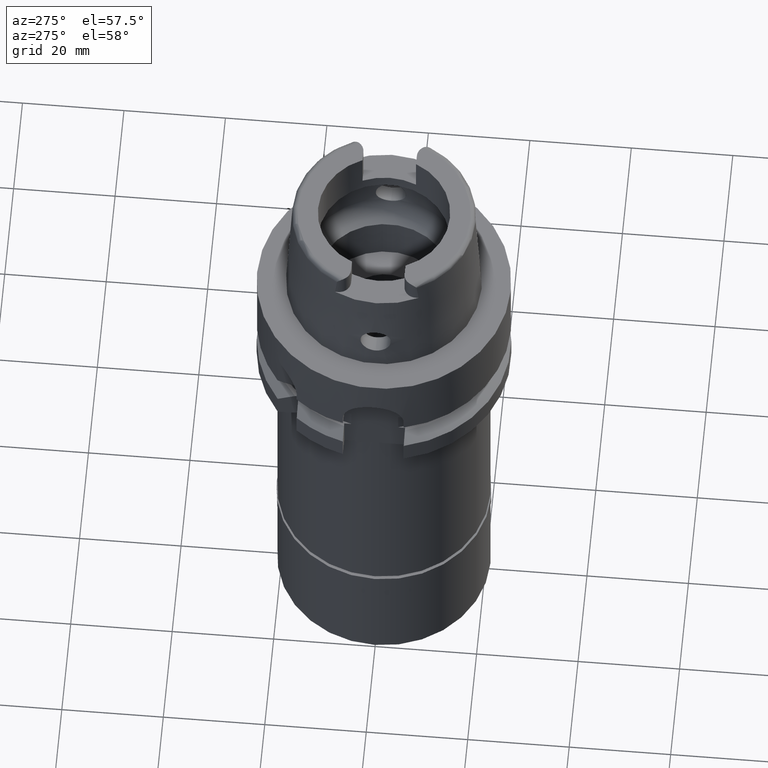
[diagram: clean part render]
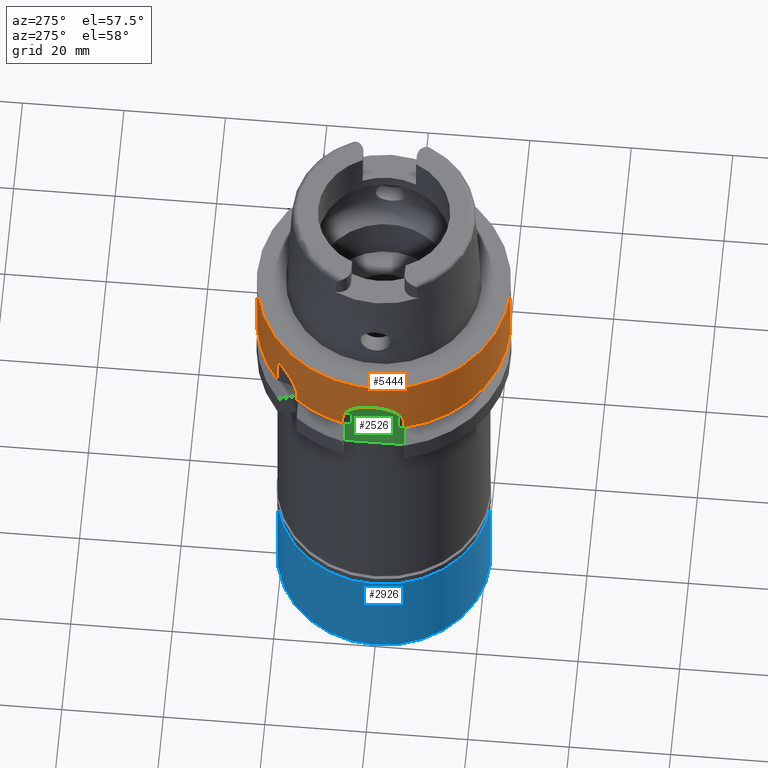
[diagram: same view with three faces highlighted in distinct colors, each labeled with its STEP entity id]
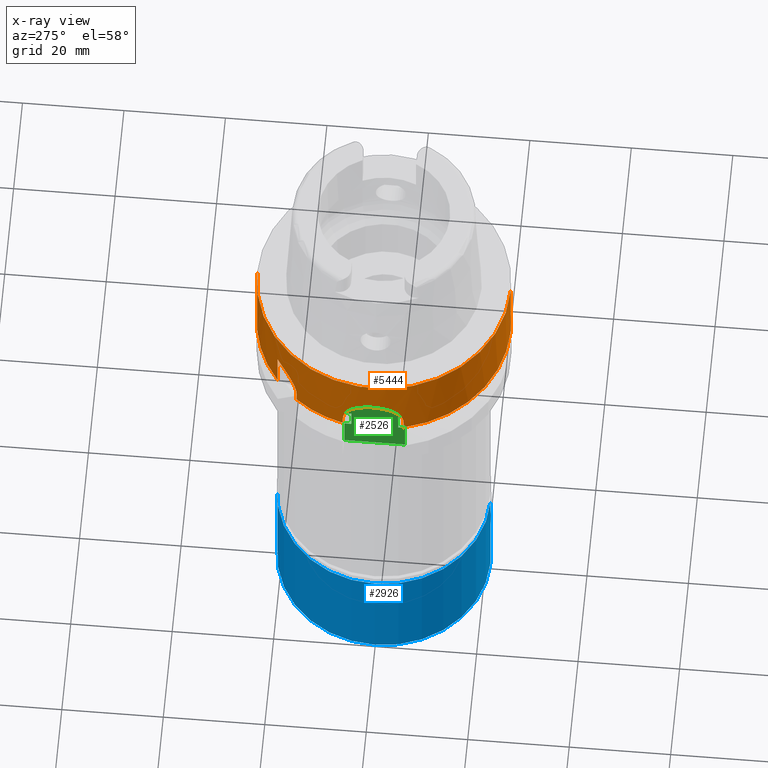
[diagram: x-ray of the same camera — body ghosted, the three highlighted faces saturated]
A machine part, auxiliary view with three faces highlighted in distinct colors.
The next image is the same camera in x-ray (body ghosted, the three faces saturated) — at least one of them is partly hidden behind the body in this view.
Their STEP definitions:

[orange] entity #5444 — the highlighted cylindrical surface (partial cylindrical patch) has radius 25 mm, axis along (0, 0, 1).
#34 = CARTESIAN_POINT ( 'NONE',  ( -24.95535361101878991, 1.541836326015813663, -7.188369604647892430 ) ) ;
#81 = CARTESIAN_POINT ( 'NONE',  ( 0.0000000000000000000, 0.0000000000000000000, -98.37500000000000000 ) ) ;
#102 = B_SPLINE_CURVE_WITH_KNOTS ( 'NONE', 3,
 ( #4672, #367, #2531, #4179, #4234, #2065, #5419, #449, #3788, #2093, #3706, #1624, #4263, #2868, #3760, #2978, #1201, #2949, #34, #5445, #3403, #1709, #5093, #1597, #3341, #2562, #4561, #5031, #1681, #889, #1252, #396, #5390, #1282, #2554, #3819, #2443, #1306, #2011, #2121, #3293, #776 ),
 .UNSPECIFIED., .F., .F.,
 ( 4, 2, 2, 2, 2, 2, 2, 2, 2, 2, 2, 2, 2, 2, 2, 2, 2, 2, 2, 2, 4 ),
 ( 0.0000000000000000000, 0.03125000000000005551, 0.06250000000000011102, 0.1250000000000002220, 0.1875000000000003331, 0.2500000000000004441, 0.3125000000000005551, 0.3437500000000005551, 0.3750000000000005551, 0.4375000000000005551, 0.5000000000000005551, 0.5625000000000005551, 0.5937500000000004441, 0.6250000000000004441, 0.6875000000000004441, 0.7500000000000004441, 0.8125000000000004441, 0.8750000000000004441, 0.9062500000000003331, 0.9375000000000003331, 1.000000000000000000 ),
 .UNSPECIFIED. ) ;
#124 = VERTEX_POINT ( 'NONE', #4723 ) ;
#146 = CARTESIAN_POINT ( 'NONE',  ( 0.0000000000000000000, 25.00000000000000000, -14.62250092523999889 ) ) ;
#172 = ORIENTED_EDGE ( 'NONE', *, *, #2993, .F. ) ;
#224 = DIRECTION ( 'NONE',  ( 0.0000000000000000000, -2.721175632404000057E-14, -1.000000000000000000 ) ) ;
#265 = CARTESIAN_POINT ( 'NONE',  ( -19.02407459964252467, 16.22022353930404037, -9.842077633799693359 ) ) ;
#318 = CARTESIAN_POINT ( 'NONE',  ( -18.92859496778201844, 16.33130053161803730, -9.648257025727346559 ) ) ;
#331 = ORIENTED_EDGE ( 'NONE', *, *, #1617, .F. ) ;
#339 = DIRECTION ( 'NONE',  ( -0.7846018098372642413, 0.6200000000000721601, 0.0000000000000000000 ) ) ;
#367 = CARTESIAN_POINT ( 'NONE',  ( -24.26932219902301213, 6.000000000000762057, -12.80583605244163792 ) ) ;
#396 = CARTESIAN_POINT ( 'NONE',  ( -24.58836526426719971, -4.527051624342708358, -9.042218890121723973 ) ) ;
#449 = CARTESIAN_POINT ( 'NONE',  ( -24.41009115467360147, 5.401023771512127425, -10.35707642823006935 ) ) ;
#476 = VECTOR ( 'NONE', #2777, 1000.000000000000114 ) ;
#503 = VERTEX_POINT ( 'NONE', #1666 ) ;
#548 = CARTESIAN_POINT ( 'NONE',  ( 0.0000000000000000000, 25.00000000000000000, 0.0000000000000000000 ) ) ;
#609 = CARTESIAN_POINT ( 'NONE',  ( 0.0000000000000000000, 0.0000000000000000000, 0.0000000000000000000 ) ) ;
#646 = CARTESIAN_POINT ( 'NONE',  ( -19.61504524592999843, 15.50000000000000000, -12.69622204404999977 ) ) ;
#655 = B_SPLINE_CURVE_WITH_KNOTS ( 'NONE', 3,
 ( #1660, #5039, #2600, #4799 ),
 .UNSPECIFIED., .F., .F.,
 ( 4, 4 ),
 ( 0.0000000000000000000, 1.000000000000000000 ),
 .UNSPECIFIED. ) ;
#755 = DIRECTION ( 'NONE',  ( 0.0000000000000000000, 0.0000000000000000000, 1.000000000000000000 ) ) ;
#757 = CARTESIAN_POINT ( 'NONE',  ( -19.33675515965062530, 15.84622887252596790, -10.66441482495540249 ) ) ;
#776 = CARTESIAN_POINT ( 'NONE',  ( -24.26932219902000298, -6.000000000000000000, -13.00000000000000000 ) ) ;
#788 = DIRECTION ( 'NONE',  ( 0.0000000000000000000, 0.0000000000000000000, 1.000000000000000000 ) ) ;
#826 = VECTOR ( 'NONE', #224, 1000.000000000000000 ) ;
#858 = EDGE_CURVE ( 'NONE', #1855, #1966, #4204, .T. ) ;
#889 = CARTESIAN_POINT ( 'NONE',  ( -24.73331096872700385, -3.657193057917722534, -8.226812429897796264 ) ) ;
#966 = LINE ( 'NONE', #3060, #4332 ) ;
#973 = B_SPLINE_CURVE_WITH_KNOTS ( 'NONE', 3,
 ( #1392, #3078, #3660, #3247, #4125, #1072, #2323, #5317, #4932, #2347, #757, #1911, #4102, #265, #318, #3632, #1497, #1988, #5341, #1551, #5264, #1151, #3608, #3684, #5289, #2400, #2423, #3580, #2796, #3221, #4906, #3266, #1572, #3166 ),
 .UNSPECIFIED., .F., .F.,
 ( 4, 2, 2, 1, 2, 2, 2, 2, 1, 1, 2, 2, 2, 2, 1, 1, 1, 2, 2, 4 ),
 ( 0.0000000000000000000, 0.1250000000000046074, 0.1875000000000068279, 0.2187500000000076883, 0.2343750000000085210, 0.2500000000000093259, 0.3750000000000169864, 0.4375000000000205946, 0.4687500000000225930, 0.4843750000000236478, 0.4921875000000244804, 0.5000000000000253131, 0.6250000000000293099, 0.6875000000000316414, 0.7187500000000329736, 0.7343750000000334177, 0.7421875000000339728, 0.7460937500000340838, 0.7500000000000340838, 1.000000000000000000 ),
 .UNSPECIFIED. ) ;
#982 = ORIENTED_EDGE ( 'NONE', *, *, #4009, .T. ) ;
#1063 = EDGE_CURVE ( 'NONE', #1197, #1855, #2577, .T. ) ;
#1072 = CARTESIAN_POINT ( 'NONE',  ( -19.48606131817219378, 15.66189871058227467, -11.30987926668374222 ) ) ;
#1075 = VERTEX_POINT ( 'NONE', #3444 ) ;
#1108 = LINE ( 'NONE', #1559, #476 ) ;
#1127 = AXIS2_PLACEMENT_3D ( 'NONE', #3671, #788, #1978 ) ;
#1151 = CARTESIAN_POINT ( 'NONE',  ( -18.41457001279503203, 16.91132767323794539, -8.817621144918945220 ) ) ;
#1197 = VERTEX_POINT ( 'NONE', #548 ) ;
#1201 = CARTESIAN_POINT ( 'NONE',  ( -24.87906390338734042, 2.462813282554705552, -7.525225472971307283 ) ) ;
#1252 = CARTESIAN_POINT ( 'NONE',  ( -24.68555471709027316, -3.962990170064482953, -8.477516643553469677 ) ) ;
#1282 = CARTESIAN_POINT ( 'NONE',  ( -24.45055003313071751, -5.217362718123691678, -10.01071790795780636 ) ) ;
#1306 = CARTESIAN_POINT ( 'NONE',  ( -24.31712403197076000, -5.803515860640099611, -11.46441935102620668 ) ) ;
#1348 = VECTOR ( 'NONE', #1864, 1000.000000000000000 ) ;
#1392 = CARTESIAN_POINT ( 'NONE',  ( -19.61504524592999843, 15.50000000000000000, -12.69622204404999977 ) ) ;
#1415 = EDGE_LOOP ( 'NONE', ( #331, #1792, #982, #5263, #4567, #172, #3377, #5446, #5044, #4484, #4017, #2877 ) ) ;
#1497 = CARTESIAN_POINT ( 'NONE',  ( -18.81837914895523056, 16.45812207743002631, -9.443244792869233351 ) ) ;
#1534 = CARTESIAN_POINT ( 'NONE',  ( 0.0000000000000000000, -25.00000000000000000, 0.0000000000000000000 ) ) ;
#1551 = CARTESIAN_POINT ( 'NONE',  ( -18.76559399953474738, 16.51824720605873864, -9.352190381070217384 ) ) ;
#1559 = CARTESIAN_POINT ( 'NONE',  ( -24.26932203528000187, -6.000000662319000533, -14.62249456424000016 ) ) ;
#1572 = CARTESIAN_POINT ( 'NONE',  ( -16.29126941648457105, 18.98977643816278160, -7.206909667963159016 ) ) ;
#1597 = CARTESIAN_POINT ( 'NONE',  ( -24.96409892544544462, -1.353086962816587802, -7.151269141626607428 ) ) ;
#1617 = EDGE_CURVE ( 'NONE', #2371, #124, #973, .T. ) ;
#1624 = CARTESIAN_POINT ( 'NONE',  ( -24.68568505870749874, 3.962145651414911818, -8.476844234244405030 ) ) ;
#1639 = DIRECTION ( 'NONE',  ( 0.0000000000000000000, 2.721175632404000057E-14, -1.000000000000000000 ) ) ;
#1660 = CARTESIAN_POINT ( 'NONE',  ( -19.61503422411000130, 15.50001394793000031, -14.62244986051999973 ) ) ;
#1666 = CARTESIAN_POINT ( 'NONE',  ( 0.0000000000000000000, -25.00000000000000000, -14.62250092523999889 ) ) ;
#1681 = CARTESIAN_POINT ( 'NONE',  ( -24.82224930864336443, -2.994607119170640708, -7.785632693681807659 ) ) ;
#1709 = CARTESIAN_POINT ( 'NONE',  ( -24.99998544072665752, -0.3910551853055507787, -7.000057638045300124 ) ) ;
#1734 = EDGE_CURVE ( 'NONE', #5076, #1075, #102, .T. ) ;
#1751 = AXIS2_PLACEMENT_3D ( 'NONE', #2440, #3733, #339 ) ;
#1758 = DIRECTION ( 'NONE',  ( 0.0000000000000000000, 0.0000000000000000000, 1.000000000000000000 ) ) ;
#1792 = ORIENTED_EDGE ( 'NONE', *, *, #3317, .F. ) ;
#1855 = VERTEX_POINT ( 'NONE', #146 ) ;
#1864 = DIRECTION ( 'NONE',  ( -0.0000000000000000000, -0.0000000000000000000, -1.000000000000000000 ) ) ;
#1911 = CARTESIAN_POINT ( 'NONE',  ( -19.24637589980138941, 15.95643460569598560, -10.38124073152340898 ) ) ;
#1966 = VERTEX_POINT ( 'NONE', #3008 ) ;
#1978 = DIRECTION ( 'NONE',  ( 0.0000000000000000000, 1.000000000000000000, 0.0000000000000000000 ) ) ;
#1988 = CARTESIAN_POINT ( 'NONE',  ( -18.79169644856309773, 16.48854633065515429, -9.396877644105805061 ) ) ;
#2011 = CARTESIAN_POINT ( 'NONE',  ( -24.30580129910013554, -5.850598382653221741, -11.65525354996053231 ) ) ;
#2031 = AXIS2_PLACEMENT_3D ( 'NONE', #81, #1758, #3457 ) ;
#2065 = CARTESIAN_POINT ( 'NONE',  ( -24.31506107757525115, 5.812384542638638685, -11.46060229096410055 ) ) ;
#2093 = CARTESIAN_POINT ( 'NONE',  ( -24.54043607326445198, 4.776752749613001114, -9.347537805756244822 ) ) ;
#2121 = CARTESIAN_POINT ( 'NONE',  ( -24.27863584831641219, -5.962696894075155463, -12.22734303068724060 ) ) ;
#2323 = CARTESIAN_POINT ( 'NONE',  ( -19.46510142991153813, 15.68794032552208328, -11.20312627520329762 ) ) ;
#2347 = CARTESIAN_POINT ( 'NONE',  ( -19.41766043675085740, 15.74657538915333710, -10.99341138789906225 ) ) ;
#2371 = VERTEX_POINT ( 'NONE', #646 ) ;
#2400 = CARTESIAN_POINT ( 'NONE',  ( -17.74806265080557210, 17.60737903613373945, -8.129170660298013829 ) ) ;
#2423 = CARTESIAN_POINT ( 'NONE',  ( -17.64378350836516773, 17.71160463534366514, -8.043195232563029151 ) ) ;
#2440 = CARTESIAN_POINT ( 'NONE',  ( 0.0000000000000000000, 0.0000000000000000000, -14.62250092523999889 ) ) ;
#2443 = CARTESIAN_POINT ( 'NONE',  ( -24.34360741634919734, -5.691405405488136005, -11.09044665784340111 ) ) ;
#2478 = VERTEX_POINT ( 'NONE', #4999 ) ;
#2531 = CARTESIAN_POINT ( 'NONE',  ( -24.27163942584406087, 5.990650275947717596, -12.61248148073377884 ) ) ;
#2537 = CARTESIAN_POINT ( 'NONE',  ( -19.61503422411000130, 15.50001394793000031, -14.62244986051999973 ) ) ;
#2554 = CARTESIAN_POINT ( 'NONE',  ( -24.40978135988931541, -5.402404187555315040, -10.36013660324103469 ) ) ;
#2562 = CARTESIAN_POINT ( 'NONE',  ( -24.92710981724196273, -1.916858020825554121, -7.311029765541317005 ) ) ;
#2576 = CIRCLE ( 'NONE', #3736, 25.00000000000000000 ) ;
#2577 = LINE ( 'NONE', #4275, #3213 ) ;
#2600 = CARTESIAN_POINT ( 'NONE',  ( -19.61504157198729104, 15.50000000000000000, -13.33829798287333368 ) ) ;
#2738 = VERTEX_POINT ( 'NONE', #5107 ) ;
#2777 = DIRECTION ( 'NONE',  ( -1.009191279488011528E-07, 4.082100671766047866E-07, 0.9999999999999115152 ) ) ;
#2796 = CARTESIAN_POINT ( 'NONE',  ( -17.56783582214542605, 17.78684471424865876, -7.983200699703450809 ) ) ;
#2814 = CIRCLE ( 'NONE', #1751, 24.99999999999999645 ) ;
#2825 = EDGE_CURVE ( 'NONE', #2478, #1197, #2576, .T. ) ;
#2868 = CARTESIAN_POINT ( 'NONE',  ( -24.80011304609404732, 3.159443632632924270, -7.895449919122672355 ) ) ;
#2877 = ORIENTED_EDGE ( 'NONE', *, *, #4104, .F. ) ;
#2949 = CARTESIAN_POINT ( 'NONE',  ( -24.92899439179786469, 1.917894290085983000, -7.301268787292198859 ) ) ;
#2978 = CARTESIAN_POINT ( 'NONE',  ( -24.86058817487646166, 2.642304791210596804, -7.609481626041195490 ) ) ;
#2993 = EDGE_CURVE ( 'NONE', #2738, #1075, #1108, .T. ) ;
#3008 = CARTESIAN_POINT ( 'NONE',  ( -15.50001397181000051, 19.61503420524999797, -14.62244977309000049 ) ) ;
#3042 = CYLINDRICAL_SURFACE ( 'NONE', #2031, 25.00000000000000000 ) ;
#3060 = CARTESIAN_POINT ( 'NONE',  ( -24.26932219902000298, 6.000000000000000000, -13.00000000000000000 ) ) ;
#3078 = CARTESIAN_POINT ( 'NONE',  ( -19.61504524593000554, 15.50000000000000178, -12.40027676963478420 ) ) ;
#3090 = CARTESIAN_POINT ( 'NONE',  ( -15.50000000000000000, 19.61504524593305021, -98.37500000000000000 ) ) ;
#3093 = EDGE_CURVE ( 'NONE', #2478, #503, #4012, .T. ) ;
#3124 = VERTEX_POINT ( 'NONE', #2537 ) ;
#3166 = CARTESIAN_POINT ( 'NONE',  ( -15.50000000000000000, 19.61504524592999843, -7.000000000001000089 ) ) ;
#3213 = VECTOR ( 'NONE', #1639, 1000.000000000000000 ) ;
#3221 = CARTESIAN_POINT ( 'NONE',  ( -17.55251486426734076, 17.80196243793699296, -7.971329393635554261 ) ) ;
#3247 = CARTESIAN_POINT ( 'NONE',  ( -19.54625381779250048, 15.58677885849067302, -11.66887505029368555 ) ) ;
#3266 = CARTESIAN_POINT ( 'NONE',  ( -16.97031285507118525, 18.37496737007496961, -7.525776690500638466 ) ) ;
#3293 = CARTESIAN_POINT ( 'NONE',  ( -24.26932219902301924, -6.000000000000731859, -12.61202634950853607 ) ) ;
#3317 = EDGE_CURVE ( 'NONE', #3124, #2371, #655, .T. ) ;
#3341 = CARTESIAN_POINT ( 'NONE',  ( -24.95305438167993728, -1.542797957532938691, -7.198391656651350168 ) ) ;
#3377 = ORIENTED_EDGE ( 'NONE', *, *, #3929, .T. ) ;
#3403 = CARTESIAN_POINT ( 'NONE',  ( -25.00001452453742345, 0.3891914277280711376, -6.999942506687688137 ) ) ;
#3434 = CIRCLE ( 'NONE', #3786, 24.99999999999999645 ) ;
#3444 = CARTESIAN_POINT ( 'NONE',  ( -24.26932219902000298, -6.000000000000000000, -13.00000000000000000 ) ) ;
#3457 = DIRECTION ( 'NONE',  ( 0.0000000000000000000, 1.000000000000000000, 0.0000000000000000000 ) ) ;
#3580 = CARTESIAN_POINT ( 'NONE',  ( -17.59075366833312160, 17.76420160951366256, -8.001069450125354976 ) ) ;
#3608 = CARTESIAN_POINT ( 'NONE',  ( -18.10994892810306212, 17.23524796909810064, -8.472863809279825631 ) ) ;
#3632 = CARTESIAN_POINT ( 'NONE',  ( -18.87912420266591695, 16.38852350835069416, -9.552589799747174482 ) ) ;
#3660 = CARTESIAN_POINT ( 'NONE',  ( -19.59784738889561950, 15.52193457882754579, -12.10525819060888253 ) ) ;
#3671 = CARTESIAN_POINT ( 'NONE',  ( 0.0000000000000000000, 0.0000000000000000000, -14.62250092523999889 ) ) ;
#3684 = CARTESIAN_POINT ( 'NONE',  ( -18.00298216616213409, 17.34706027870813116, -8.362941106678157155 ) ) ;
#3706 = CARTESIAN_POINT ( 'NONE',  ( -24.58867808454671078, 4.525323749219865022, -9.040342454006403017 ) ) ;
#3733 = DIRECTION ( 'NONE',  ( 0.0000000000000000000, 0.0000000000000000000, 1.000000000000000000 ) ) ;
#3736 = AXIS2_PLACEMENT_3D ( 'NONE', #609, #4720, #5188 ) ;
#3757 = CARTESIAN_POINT ( 'NONE',  ( -24.26932223252999776, 5.999999864481999623, -14.62250222676000000 ) ) ;
#3760 = CARTESIAN_POINT ( 'NONE',  ( -24.82116559556856572, 2.990043057854803177, -7.794356764381915603 ) ) ;
#3785 = DIRECTION ( 'NONE',  ( -0.9707728879609262007, -0.2400000000000065414, 0.0000000000000000000 ) ) ;
#3786 = AXIS2_PLACEMENT_3D ( 'NONE', #4952, #755, #3785 ) ;
#3788 = CARTESIAN_POINT ( 'NONE',  ( -24.45072351547539924, 5.216559121364669593, -10.00927126557037106 ) ) ;
#3819 = CARTESIAN_POINT ( 'NONE',  ( -24.35883118394649927, -5.626117010232278837, -10.90597964436103950 ) ) ;
#3865 = DIRECTION ( 'NONE',  ( -2.065023104210981992E-08, -8.352418341062937302E-08, -0.9999999999999962252 ) ) ;
#3872 = FACE_OUTER_BOUND ( 'NONE', #1415, .T. ) ;
#3929 = EDGE_CURVE ( 'NONE', #2738, #503, #3434, .T. ) ;
#4009 = EDGE_CURVE ( 'NONE', #3124, #4045, #2814, .T. ) ;
#4012 = LINE ( 'NONE', #1534, #826 ) ;
#4014 = LINE ( 'NONE', #3090, #1348 ) ;
#4017 = ORIENTED_EDGE ( 'NONE', *, *, #858, .T. ) ;
#4045 = VERTEX_POINT ( 'NONE', #3757 ) ;
#4102 = CARTESIAN_POINT ( 'NONE',  ( -19.08311182305393672, 16.15066521663492338, -9.974608310426411606 ) ) ;
#4104 = EDGE_CURVE ( 'NONE', #124, #1966, #4014, .T. ) ;
#4125 = CARTESIAN_POINT ( 'NONE',  ( -19.52475649649952771, 15.61371009142826871, -11.52443581795221839 ) ) ;
#4179 = CARTESIAN_POINT ( 'NONE',  ( -24.28084346691170836, 5.953235396171662863, -12.22739108901908445 ) ) ;
#4204 = CIRCLE ( 'NONE', #1127, 25.00000000000000000 ) ;
#4234 = CARTESIAN_POINT ( 'NONE',  ( -24.28767626308666294, 5.925393156485648127, -12.03679209180181076 ) ) ;
#4263 = CARTESIAN_POINT ( 'NONE',  ( -24.73372933128237960, 3.654230156158029708, -8.224696140056071414 ) ) ;
#4275 = CARTESIAN_POINT ( 'NONE',  ( 0.0000000000000000000, 25.00000000000000000, 0.0000000000000000000 ) ) ;
#4332 = VECTOR ( 'NONE', #3865, 1000.000000000000227 ) ;
#4484 = ORIENTED_EDGE ( 'NONE', *, *, #1063, .T. ) ;
#4561 = CARTESIAN_POINT ( 'NONE',  ( -24.91231055468588451, -2.100108490845772558, -7.376093460779432398 ) ) ;
#4567 = ORIENTED_EDGE ( 'NONE', *, *, #1734, .T. ) ;
#4672 = CARTESIAN_POINT ( 'NONE',  ( -24.26932219902000298, 6.000000000000000000, -13.00000000000000000 ) ) ;
#4719 = CARTESIAN_POINT ( 'NONE',  ( -24.26932219902000298, 6.000000000000000000, -13.00000000000000000 ) ) ;
#4720 = DIRECTION ( 'NONE',  ( 0.0000000000000000000, 0.0000000000000000000, -1.000000000000000000 ) ) ;
#4723 = CARTESIAN_POINT ( 'NONE',  ( -15.50000000000000000, 19.61504524592999843, -7.000000000001000089 ) ) ;
#4799 = CARTESIAN_POINT ( 'NONE',  ( -19.61504524592999843, 15.50000000000000000, -12.69622204404999977 ) ) ;
#4906 = CARTESIAN_POINT ( 'NONE',  ( -17.54598683858310437, 17.80839705363575831, -7.966297140403831634 ) ) ;
#4932 = CARTESIAN_POINT ( 'NONE',  ( -19.42560010203570542, 15.73678013091696037, -11.02690071354626689 ) ) ;
#4952 = CARTESIAN_POINT ( 'NONE',  ( 0.0000000000000000000, 0.0000000000000000000, -14.62250092523999889 ) ) ;
#4975 = EDGE_CURVE ( 'NONE', #5076, #4045, #966, .T. ) ;
#4999 = CARTESIAN_POINT ( 'NONE',  ( 0.0000000000000000000, -25.00000000000000000, 0.0000000000000000000 ) ) ;
#5031 = CARTESIAN_POINT ( 'NONE',  ( -24.86204189610135984, -2.648313452415544056, -7.601585556517136411 ) ) ;
#5039 = CARTESIAN_POINT ( 'NONE',  ( -19.61503789804864439, 15.50000000000000000, -13.98037392169666582 ) ) ;
#5044 = ORIENTED_EDGE ( 'NONE', *, *, #2825, .T. ) ;
#5076 = VERTEX_POINT ( 'NONE', #4719 ) ;
#5093 = CARTESIAN_POINT ( 'NONE',  ( -24.99092029322114428, -0.7760288985264198747, -7.037491214813108797 ) ) ;
#5107 = CARTESIAN_POINT ( 'NONE',  ( -24.26932203528000187, -6.000000662319000533, -14.62249456424000016 ) ) ;
#5188 = DIRECTION ( 'NONE',  ( 0.0000000000000000000, -1.000000000000000000, 0.0000000000000000000 ) ) ;
#5263 = ORIENTED_EDGE ( 'NONE', *, *, #4975, .F. ) ;
#5264 = CARTESIAN_POINT ( 'NONE',  ( -18.59594513441525621, 16.71074251852973802, -9.067499060392020027 ) ) ;
#5289 = CARTESIAN_POINT ( 'NONE',  ( -17.83439242268533675, 17.51977361110528264, -8.205803812318729129 ) ) ;
#5317 = CARTESIAN_POINT ( 'NONE',  ( -19.44172309300543944, 15.71686296240618752, -11.09726520652154669 ) ) ;
#5341 = CARTESIAN_POINT ( 'NONE',  ( -18.77376373586951175, 16.50896034479196217, -9.366077225941655371 ) ) ;
#5390 = CARTESIAN_POINT ( 'NONE',  ( -24.54019284420141034, -4.777991819216730107, -9.349203218661413572 ) ) ;
#5419 = CARTESIAN_POINT ( 'NONE',  ( -24.34186078569131340, 5.700650967208633624, -11.08755013772914921 ) ) ;
#5444 = ADVANCED_FACE ( 'NONE', ( #3872 ), #3042, .T. ) ;
#5445 = CARTESIAN_POINT ( 'NONE',  ( -24.99089275615590822, 0.7760234258863221157, -7.037604886495901546 ) ) ;
#5446 = ORIENTED_EDGE ( 'NONE', *, *, #3093, .F. ) ;

[blue] entity #2926 — the highlighted cylindrical surface (partial cylindrical patch) has radius 21 mm, axis along (0, 0, -1).
#72 = DIRECTION ( 'NONE',  ( 0.0000000000000000000, 0.0000000000000000000, -1.000000000000000000 ) ) ;
#299 = AXIS2_PLACEMENT_3D ( 'NONE', #1584, #355, #1192 ) ;
#305 = AXIS2_PLACEMENT_3D ( 'NONE', #937, #72, #5129 ) ;
#309 = CARTESIAN_POINT ( 'NONE',  ( 0.0000000000000000000, 21.00000000000000000, -24.29999999999999716 ) ) ;
#355 = DIRECTION ( 'NONE',  ( 0.0000000000000000000, 0.0000000000000000000, 1.000000000000000000 ) ) ;
#536 = ORIENTED_EDGE ( 'NONE', *, *, #1200, .F. ) ;
#580 = CARTESIAN_POINT ( 'NONE',  ( 0.0000000000000000000, -21.00000000000000000, -2.000000000000000000 ) ) ;
#802 = LINE ( 'NONE', #3405, #4510 ) ;
#815 = VERTEX_POINT ( 'NONE', #309 ) ;
#851 = VERTEX_POINT ( 'NONE', #2386 ) ;
#883 = EDGE_CURVE ( 'NONE', #815, #1659, #2505, .T. ) ;
#937 = CARTESIAN_POINT ( 'NONE',  ( 0.0000000000000000000, 0.0000000000000000000, 0.0000000000000000000 ) ) ;
#1192 = DIRECTION ( 'NONE',  ( 0.0000000000000000000, 1.000000000000000000, 0.0000000000000000000 ) ) ;
#1200 = EDGE_CURVE ( 'NONE', #3150, #1659, #2192, .T. ) ;
#1584 = CARTESIAN_POINT ( 'NONE',  ( 0.0000000000000000000, 0.0000000000000000000, -24.29999999999999716 ) ) ;
#1659 = VERTEX_POINT ( 'NONE', #2770 ) ;
#2171 = CYLINDRICAL_SURFACE ( 'NONE', #305, 21.00000000000000000 ) ;
#2192 = LINE ( 'NONE', #580, #2763 ) ;
#2274 = DIRECTION ( 'NONE',  ( 0.0000000000000000000, 0.0000000000000000000, -1.000000000000000000 ) ) ;
#2386 = CARTESIAN_POINT ( 'NONE',  ( 0.0000000000000000000, 21.00000000000000000, -2.000000000000000000 ) ) ;
#2505 = CIRCLE ( 'NONE', #299, 21.00000000000000000 ) ;
#2745 = ORIENTED_EDGE ( 'NONE', *, *, #883, .T. ) ;
#2763 = VECTOR ( 'NONE', #3059, 1000.000000000000000 ) ;
#2770 = CARTESIAN_POINT ( 'NONE',  ( 0.0000000000000000000, -21.00000000000000000, -24.29999999999999716 ) ) ;
#2854 = CARTESIAN_POINT ( 'NONE',  ( 0.0000000000000000000, -21.00000000000000000, -2.000000000000000000 ) ) ;
#2911 = ORIENTED_EDGE ( 'NONE', *, *, #5156, .T. ) ;
#2926 = ADVANCED_FACE ( 'NONE', ( #4277 ), #2171, .T. ) ;
#3059 = DIRECTION ( 'NONE',  ( 0.0000000000000000000, 0.0000000000000000000, -1.000000000000000000 ) ) ;
#3150 = VERTEX_POINT ( 'NONE', #2854 ) ;
#3325 = EDGE_CURVE ( 'NONE', #3150, #851, #4970, .T. ) ;
#3405 = CARTESIAN_POINT ( 'NONE',  ( 0.0000000000000000000, 21.00000000000000000, -2.000000000000000000 ) ) ;
#3438 = DIRECTION ( 'NONE',  ( 0.0000000000000000000, -1.000000000000000000, 0.0000000000000000000 ) ) ;
#3882 = CARTESIAN_POINT ( 'NONE',  ( 0.0000000000000000000, 0.0000000000000000000, -2.000000000000000000 ) ) ;
#4149 = EDGE_LOOP ( 'NONE', ( #2745, #536, #5185, #2911 ) ) ;
#4277 = FACE_OUTER_BOUND ( 'NONE', #4149, .T. ) ;
#4510 = VECTOR ( 'NONE', #5115, 1000.000000000000000 ) ;
#4970 = CIRCLE ( 'NONE', #5320, 21.00000000000000000 ) ;
#5115 = DIRECTION ( 'NONE',  ( 0.0000000000000000000, 0.0000000000000000000, -1.000000000000000000 ) ) ;
#5129 = DIRECTION ( 'NONE',  ( 0.0000000000000000000, -1.000000000000000000, 0.0000000000000000000 ) ) ;
#5156 = EDGE_CURVE ( 'NONE', #851, #815, #802, .T. ) ;
#5185 = ORIENTED_EDGE ( 'NONE', *, *, #3325, .T. ) ;
#5320 = AXIS2_PLACEMENT_3D ( 'NONE', #3882, #2274, #3438 ) ;

[green] entity #2526 — the highlighted planar face has unit normal (1, 0, 0).
#37 = VECTOR ( 'NONE', #2330, 1000.000000000000000 ) ;
#51 = CARTESIAN_POINT ( 'NONE',  ( -21.00000000000000000, 6.000000000000000000, -19.87500000000000000 ) ) ;
#70 = CARTESIAN_POINT ( 'NONE',  ( -21.00000000000000000, 6.000000000000000000, -16.12500000000000000 ) ) ;
#87 = ORIENTED_EDGE ( 'NONE', *, *, #2119, .F. ) ;
#208 = DIRECTION ( 'NONE',  ( 0.0000000000000000000, 0.0000000000000000000, -1.000000000000000000 ) ) ;
#244 = DIRECTION ( 'NONE',  ( 1.000000000000000000, 0.0000000000000000000, 0.0000000000000000000 ) ) ;
#267 = ORIENTED_EDGE ( 'NONE', *, *, #2678, .T. ) ;
#297 = ORIENTED_EDGE ( 'NONE', *, *, #1492, .T. ) ;
#315 = DIRECTION ( 'NONE',  ( 0.0000000000000000000, 1.000000000000000000, 0.0000000000000000000 ) ) ;
#375 = CARTESIAN_POINT ( 'NONE',  ( -21.00000000000000000, 6.000000000000000000, -13.00000000000000000 ) ) ;
#393 = CARTESIAN_POINT ( 'NONE',  ( -21.00000000000000000, -6.000000000000000000, -19.87500000000000000 ) ) ;
#431 = CARTESIAN_POINT ( 'NONE',  ( -21.00000000000000000, 6.000000000000000000, -26.00000000000000000 ) ) ;
#489 = FACE_OUTER_BOUND ( 'NONE', #4273, .T. ) ;
#491 = LINE ( 'NONE', #2932, #621 ) ;
#553 = EDGE_CURVE ( 'NONE', #3268, #4016, #2748, .T. ) ;
#566 = CARTESIAN_POINT ( 'NONE',  ( -21.00000000000000000, -6.000000000000000000, -16.12500000000000000 ) ) ;
#621 = VECTOR ( 'NONE', #4243, 1000.000000000000000 ) ;
#637 = CARTESIAN_POINT ( 'NONE',  ( -21.00000000000000000, -6.000000000000000000, -16.12500000000000000 ) ) ;
#643 = ORIENTED_EDGE ( 'NONE', *, *, #3028, .F. ) ;
#681 = LINE ( 'NONE', #4399, #2660 ) ;
#739 = EDGE_CURVE ( 'NONE', #2871, #3346, #3942, .T. ) ;
#766 = ORIENTED_EDGE ( 'NONE', *, *, #4163, .F. ) ;
#782 = CARTESIAN_POINT ( 'NONE',  ( -21.00000000000000000, -6.000000000000000000, -26.00000000000000000 ) ) ;
#910 = VECTOR ( 'NONE', #2295, 1000.000000000000000 ) ;
#944 = VERTEX_POINT ( 'NONE', #4660 ) ;
#957 = CARTESIAN_POINT ( 'NONE',  ( -21.00000000000000000, 4.609772228645999448, -19.87500000000000000 ) ) ;
#971 = ORIENTED_EDGE ( 'NONE', *, *, #553, .T. ) ;
#992 = CARTESIAN_POINT ( 'NONE',  ( -21.00000000000000000, 6.000000000000000000, -13.00000000000000000 ) ) ;
#995 = CARTESIAN_POINT ( 'NONE',  ( -21.00000000000000000, 4.609772228645999448, -16.12500000000000000 ) ) ;
#1057 = VERTEX_POINT ( 'NONE', #70 ) ;
#1116 = DIRECTION ( 'NONE',  ( 0.0000000000000000000, 1.000000000000000000, 0.0000000000000000000 ) ) ;
#1270 = LINE ( 'NONE', #51, #4972 ) ;
#1313 = CARTESIAN_POINT ( 'NONE',  ( -21.00000000000000000, 0.0000000000000000000, 0.0000000000000000000 ) ) ;
#1338 = CARTESIAN_POINT ( 'NONE',  ( -21.00000000000000000, -6.000000000000000000, -13.00000000000000000 ) ) ;
#1451 = CARTESIAN_POINT ( 'NONE',  ( -21.00000000000000000, -6.000000000000000000, -26.00000000000000000 ) ) ;
#1492 = EDGE_CURVE ( 'NONE', #944, #3395, #4797, .T. ) ;
#1548 = AXIS2_PLACEMENT_3D ( 'NONE', #2351, #244, #1915 ) ;
#1576 = CARTESIAN_POINT ( 'NONE',  ( -21.00000000000000000, -6.000000000000000000, -16.12500000000000000 ) ) ;
#1769 = CARTESIAN_POINT ( 'NONE',  ( -21.00000000000000000, 6.000000000000000000, -19.87500000000000000 ) ) ;
#1800 = VERTEX_POINT ( 'NONE', #4311 ) ;
#1803 = LINE ( 'NONE', #3955, #5238 ) ;
#1814 = VECTOR ( 'NONE', #1116, 1000.000000000000000 ) ;
#1818 = LINE ( 'NONE', #566, #3414 ) ;
#1915 = DIRECTION ( 'NONE',  ( 0.0000000000000000000, 0.0000000000000000000, 1.000000000000000000 ) ) ;
#1928 = EDGE_CURVE ( 'NONE', #2975, #3346, #1818, .T. ) ;
#2048 = DIRECTION ( 'NONE',  ( 0.0000000000000000000, 0.0000000000000000000, -1.000000000000000000 ) ) ;
#2098 = ORIENTED_EDGE ( 'NONE', *, *, #4391, .T. ) ;
#2119 = EDGE_CURVE ( 'NONE', #3643, #4403, #3240, .T. ) ;
#2138 = ORIENTED_EDGE ( 'NONE', *, *, #2813, .T. ) ;
#2295 = DIRECTION ( 'NONE',  ( 2.044392294273000439E-14, 1.000000000000000000, 0.0000000000000000000 ) ) ;
#2308 = DIRECTION ( 'NONE',  ( 2.044392294273000439E-14, 1.000000000000000000, 0.0000000000000000000 ) ) ;
#2330 = DIRECTION ( 'NONE',  ( -2.044392294273000439E-14, 1.000000000000000000, 0.0000000000000000000 ) ) ;
#2351 = CARTESIAN_POINT ( 'NONE',  ( -21.00000000000000000, 0.0000000000000000000, -13.00000000000000000 ) ) ;
#2366 = EDGE_CURVE ( 'NONE', #3268, #3643, #4898, .T. ) ;
#2393 = CARTESIAN_POINT ( 'NONE',  ( -21.00000000000000000, 0.0000000000000000000, -26.00000000000000000 ) ) ;
#2463 = ORIENTED_EDGE ( 'NONE', *, *, #739, .F. ) ;
#2526 = ADVANCED_FACE ( 'NONE', ( #489 ), #5101, .F. ) ;
#2660 = VECTOR ( 'NONE', #208, 1000.000000000000000 ) ;
#2662 = VERTEX_POINT ( 'NONE', #4576 ) ;
#2678 = EDGE_CURVE ( 'NONE', #3395, #4403, #1270, .T. ) ;
#2693 = VECTOR ( 'NONE', #4745, 1000.000000000000000 ) ;
#2748 = LINE ( 'NONE', #1451, #2693 ) ;
#2784 = CARTESIAN_POINT ( 'NONE',  ( -21.00000000000000000, -6.000000000000000000, -26.00000000000000000 ) ) ;
#2801 = ORIENTED_EDGE ( 'NONE', *, *, #3275, .T. ) ;
#2813 = EDGE_CURVE ( 'NONE', #4016, #5241, #1803, .T. ) ;
#2851 = VECTOR ( 'NONE', #2048, 1000.000000000000000 ) ;
#2871 = VERTEX_POINT ( 'NONE', #992 ) ;
#2932 = CARTESIAN_POINT ( 'NONE',  ( -21.00000000000000000, -4.609772228645999448, -19.87500000000000000 ) ) ;
#2975 = VERTEX_POINT ( 'NONE', #1576 ) ;
#2996 = DIRECTION ( 'NONE',  ( 0.0000000000000000000, 0.0000000000000000000, -1.000000000000000000 ) ) ;
#3028 = EDGE_CURVE ( 'NONE', #2975, #1800, #5326, .T. ) ;
#3073 = CARTESIAN_POINT ( 'NONE',  ( -21.00000000000000000, -4.609772228645999448, -19.87500000000000000 ) ) ;
#3240 = LINE ( 'NONE', #2393, #3958 ) ;
#3268 = VERTEX_POINT ( 'NONE', #782 ) ;
#3275 = EDGE_CURVE ( 'NONE', #2871, #1057, #4624, .T. ) ;
#3346 = VERTEX_POINT ( 'NONE', #1338 ) ;
#3371 = VECTOR ( 'NONE', #2308, 1000.000000000000000 ) ;
#3378 = ORIENTED_EDGE ( 'NONE', *, *, #3831, .T. ) ;
#3395 = VERTEX_POINT ( 'NONE', #1769 ) ;
#3414 = VECTOR ( 'NONE', #3517, 1000.000000000000000 ) ;
#3439 = DIRECTION ( 'NONE',  ( 1.000000000000000000, 0.0000000000000000000, 0.0000000000000000000 ) ) ;
#3517 = DIRECTION ( 'NONE',  ( 0.0000000000000000000, 0.0000000000000000000, 1.000000000000000000 ) ) ;
#3562 = DIRECTION ( 'NONE',  ( -2.044392294273000439E-14, 1.000000000000000000, 0.0000000000000000000 ) ) ;
#3579 = ORIENTED_EDGE ( 'NONE', *, *, #1928, .T. ) ;
#3643 = VERTEX_POINT ( 'NONE', #5146 ) ;
#3831 = EDGE_CURVE ( 'NONE', #2662, #944, #681, .T. ) ;
#3917 = AXIS2_PLACEMENT_3D ( 'NONE', #1313, #3439, #5120 ) ;
#3942 = CIRCLE ( 'NONE', #1548, 6.000000000000000000 ) ;
#3955 = CARTESIAN_POINT ( 'NONE',  ( -21.00000000000000000, -6.000000000000000000, -19.87500000000000000 ) ) ;
#3958 = VECTOR ( 'NONE', #315, 1000.000000000000000 ) ;
#4016 = VERTEX_POINT ( 'NONE', #393 ) ;
#4163 = EDGE_CURVE ( 'NONE', #2662, #1057, #4414, .T. ) ;
#4243 = DIRECTION ( 'NONE',  ( 0.0000000000000000000, 0.0000000000000000000, 1.000000000000000000 ) ) ;
#4273 = EDGE_LOOP ( 'NONE', ( #4836, #971, #2138, #2098, #643, #3579, #2463, #2801, #766, #3378, #297, #267, #87 ) ) ;
#4311 = CARTESIAN_POINT ( 'NONE',  ( -21.00000000000000000, -4.609772228645999448, -16.12500000000000000 ) ) ;
#4391 = EDGE_CURVE ( 'NONE', #5241, #1800, #491, .T. ) ;
#4399 = CARTESIAN_POINT ( 'NONE',  ( -21.00000000000000000, 4.609772228645999448, -16.12500000000000000 ) ) ;
#4403 = VERTEX_POINT ( 'NONE', #431 ) ;
#4414 = LINE ( 'NONE', #995, #3371 ) ;
#4576 = CARTESIAN_POINT ( 'NONE',  ( -21.00000000000000000, 4.609772228645999448, -16.12500000000000000 ) ) ;
#4624 = LINE ( 'NONE', #375, #2851 ) ;
#4660 = CARTESIAN_POINT ( 'NONE',  ( -21.00000000000000000, 4.609772228645999448, -19.87500000000000000 ) ) ;
#4745 = DIRECTION ( 'NONE',  ( 0.0000000000000000000, 0.0000000000000000000, 1.000000000000000000 ) ) ;
#4797 = LINE ( 'NONE', #957, #910 ) ;
#4836 = ORIENTED_EDGE ( 'NONE', *, *, #2366, .F. ) ;
#4898 = LINE ( 'NONE', #2784, #1814 ) ;
#4972 = VECTOR ( 'NONE', #2996, 1000.000000000000000 ) ;
#5101 = PLANE ( 'NONE',  #3917 ) ;
#5120 = DIRECTION ( 'NONE',  ( 0.0000000000000000000, 1.000000000000000000, 0.0000000000000000000 ) ) ;
#5146 = CARTESIAN_POINT ( 'NONE',  ( -21.00000000000000000, 0.0000000000000000000, -26.00000000000000000 ) ) ;
#5238 = VECTOR ( 'NONE', #3562, 1000.000000000000000 ) ;
#5241 = VERTEX_POINT ( 'NONE', #3073 ) ;
#5326 = LINE ( 'NONE', #637, #37 ) ;